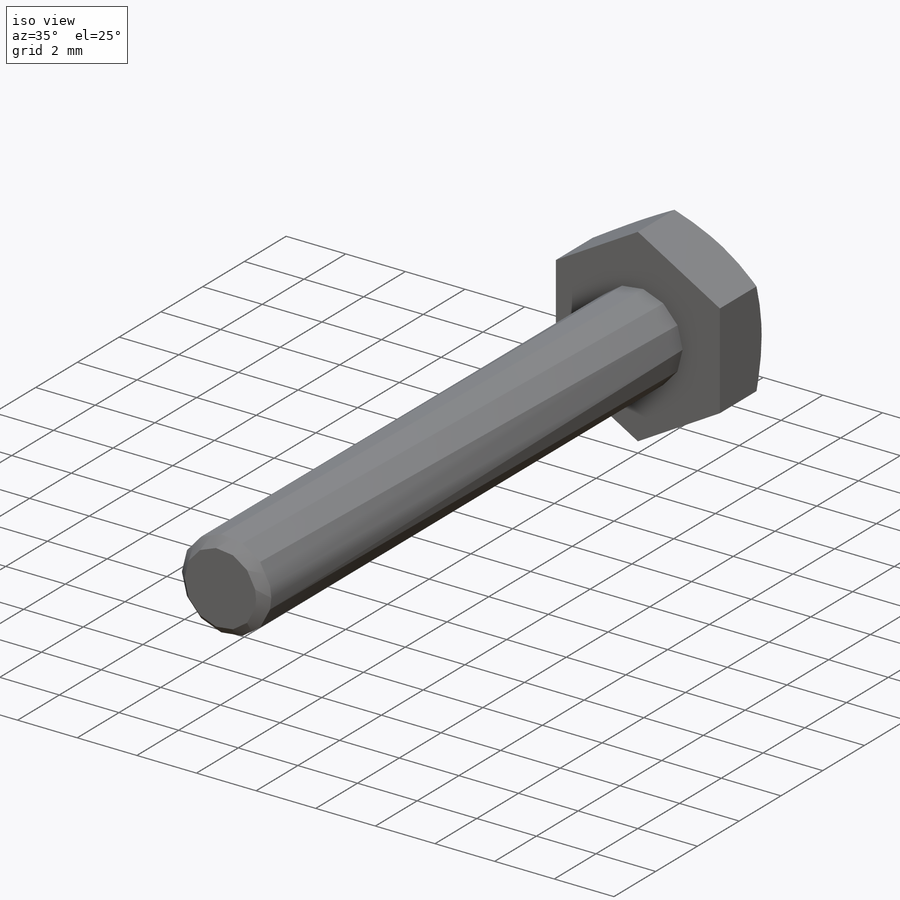
[diagram: iso view]
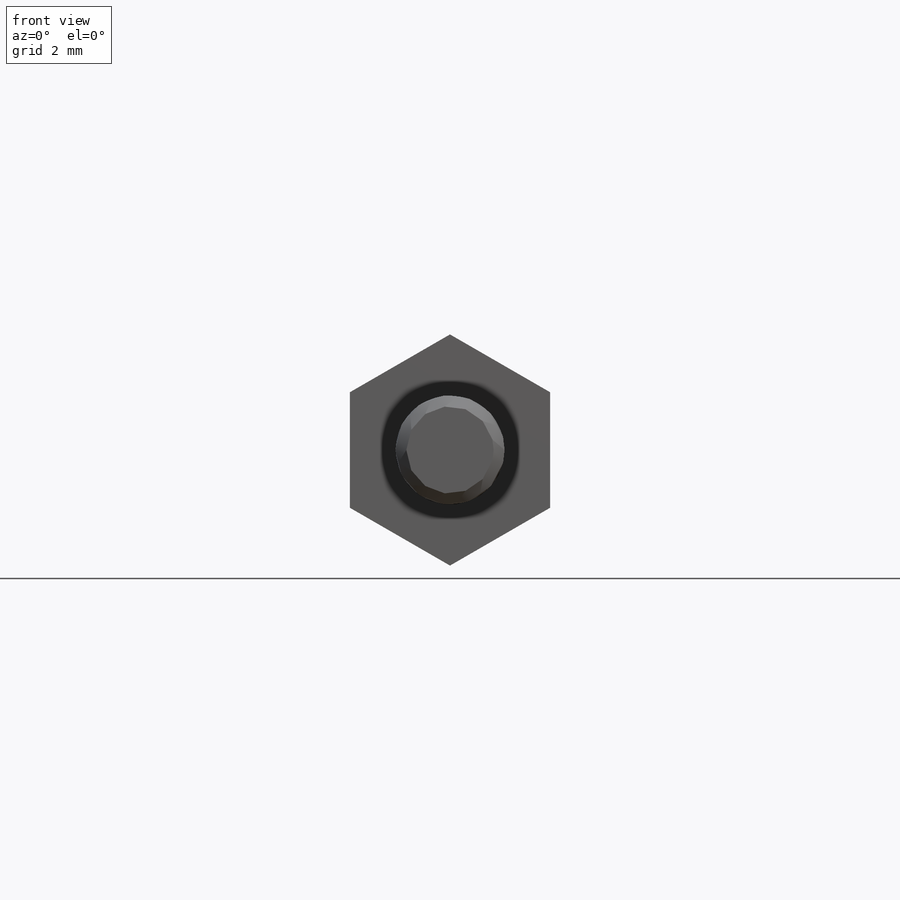
[diagram: front view]
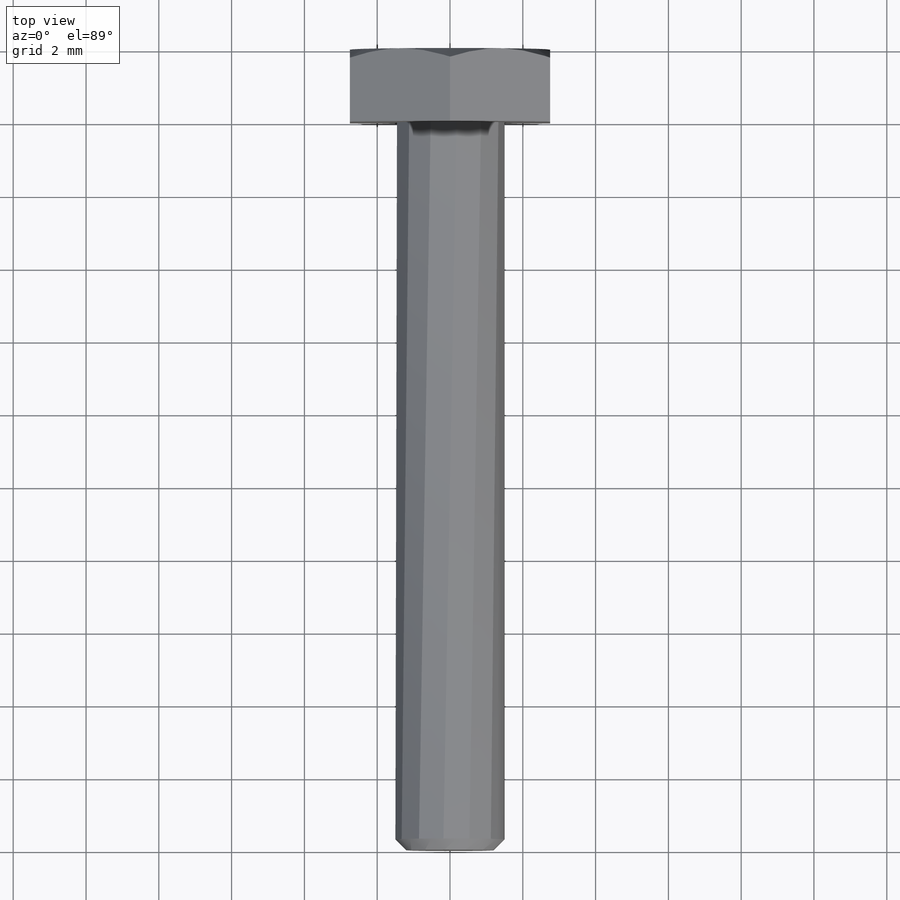
[diagram: top view]
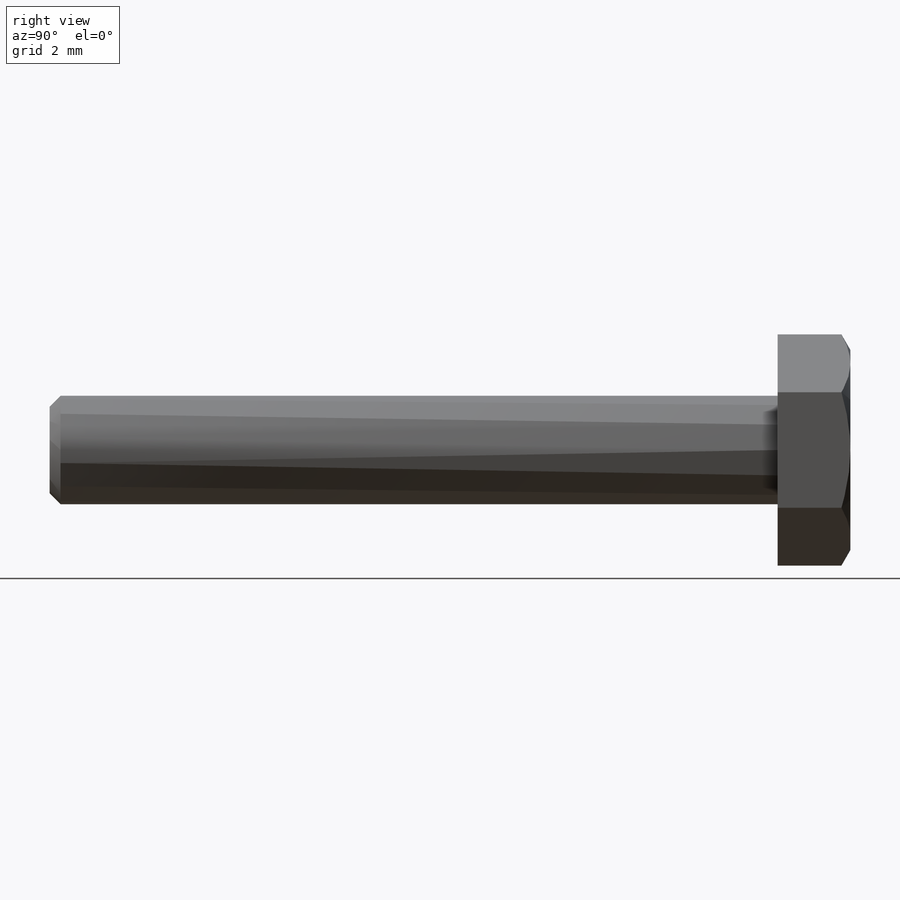
[diagram: right view]
SOLIDWORKS PART (.sldprt)
format: sldprt  version: not decoded by parser v0  size: 142,336 bytes
history: native  units: mm
features: sketch x5, plane x3, material x1, revolve x1, chamfer x1, helix x1, sweep x1, extrude x1, cut_revolve x1 + 1 further entry (+9 scaffold rows collapsed)
feature tree (25):
  scaffold x9  (default folders/planes/origin — collapsed)
  material  "Matériau <non spécifié>"
  "Corps de surface"
  plane  "Plan1"
  plane  "Plan2"
  plane  "Plan3"
  sketch  "Esquisse1"  dims[c1.D1=20.0mm c1.D2=20.0mm c2.D1=20.0mm c2.D2=1.5mm]
  revolve  "Base-Révolution"  Angle=360deg
  chamfer  "Chanfrein1"  Distance=0.3mm Angle=45deg
  sketch  "Esquisse3"  dims[c1.D1=0.3mm c1.D2=0.03mm c1.D3=0.33mm c1.D4=0.03mm c1.D5=~4.472136mm c2.D5=60.0deg c2.D6=~4.472136mm c3.D6=60.0deg]
  sketch  "Esquisse4"
  helix  "Hélice1"  Pitch=12mm
  sweep  "Enlèvement de matière-Balayage3"
  sketch  "Esquisse6"  dims[c1.D2=16.0mm c1.D1=~58.309519mm c2.D1=30.0deg c2.D2=~10.630146mm c3.D2=30.0deg]
  extrude  "Boss.-Extru.1"  Depth=2mm
  sketch  "Esquisse7"  dims[c1.D1=6.0mm c2.D1=30.0deg]
  cut_revolve  "Enlèvement de matière-Révolution1"  Angle=360deg
decode coverage: 9 of 11 modeling features carry decoded parameters; 1 rows unclassified (native names shown)
note: ~ marks probable driven/reference dimensions
note: suppression state not decoded; provenance and decode notes live in map.json
